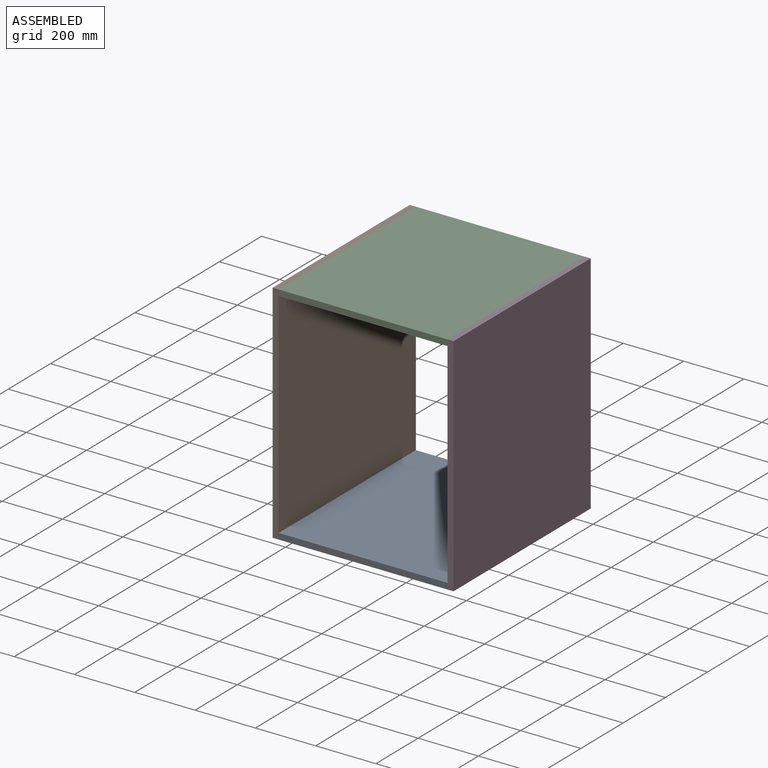
[diagram: assembled view]
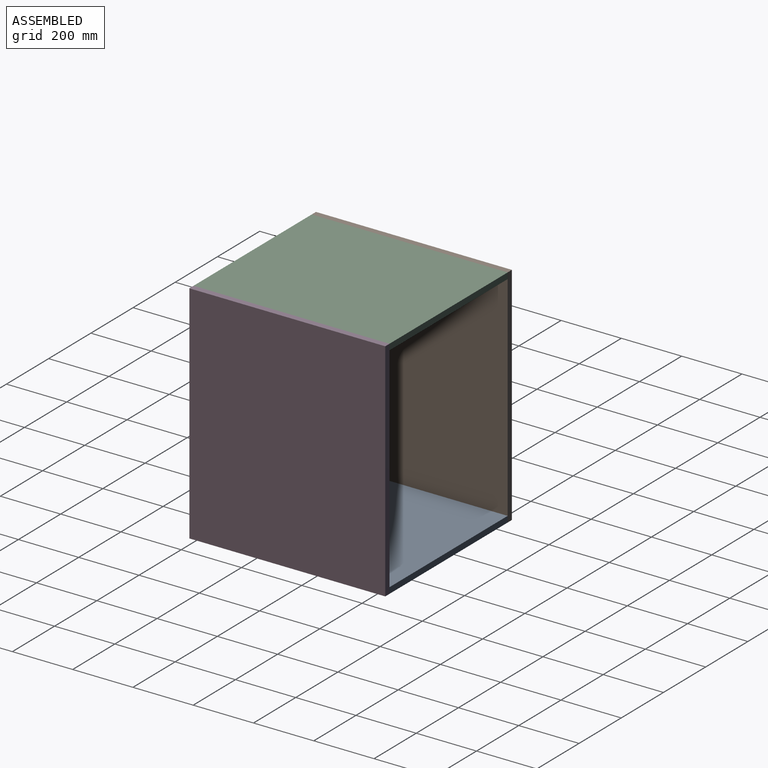
[diagram: assembled view, second angle]
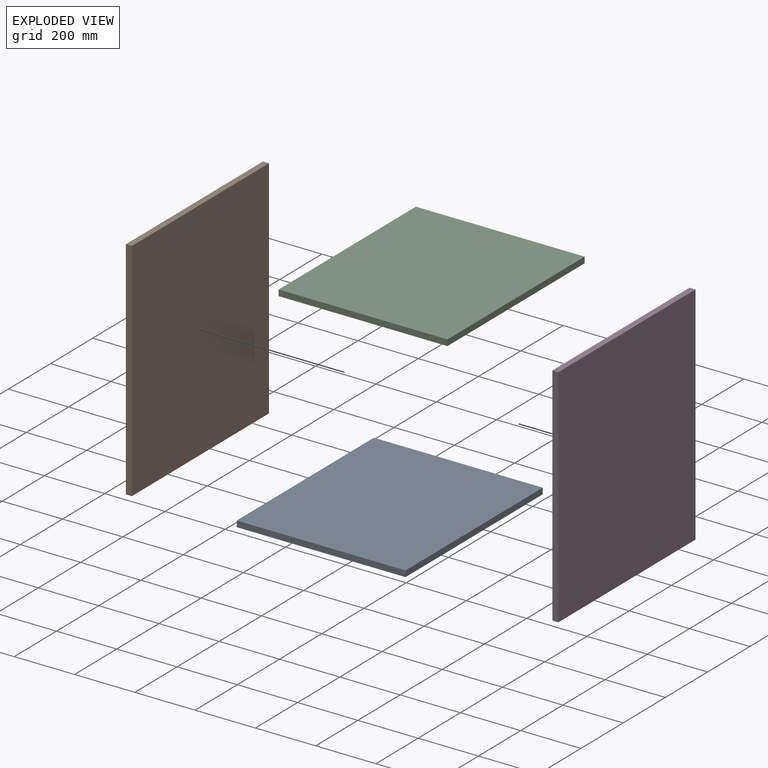
[diagram: exploded view]
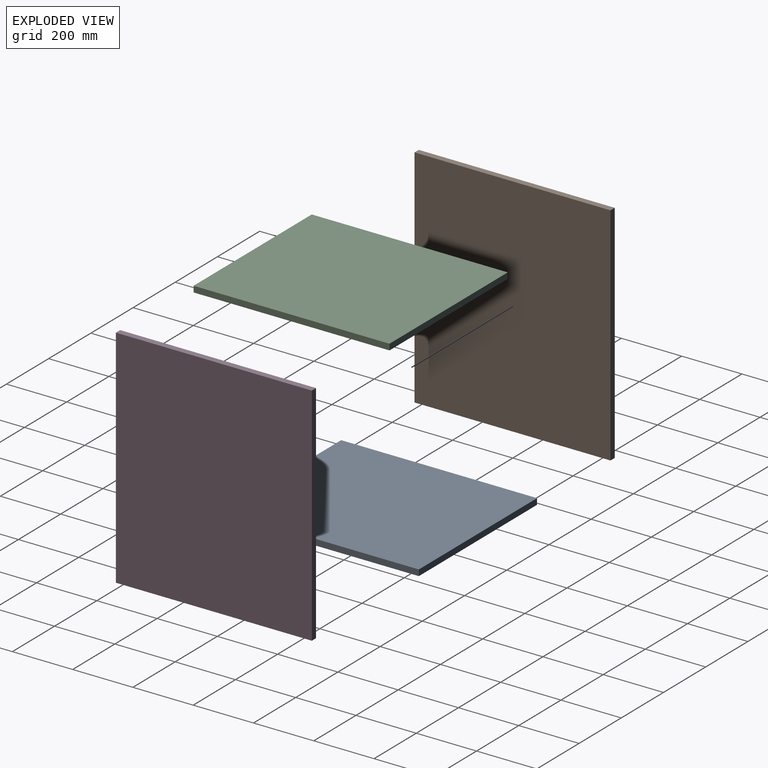
[diagram: exploded view, second angle]
ASSEMBLY  parts=4 mates=3
PART A: 6 faces, bbox 560x650x20 mm
  f0: plane 560x20mm, normal (0,1,0), area 11200mm2, adj f1,f3,f4,f5
  f1: plane 650x20mm, normal (-1,0,0), area 13000mm2, adj f0,f2,f4,f5
  f2: plane 560x20mm, normal (0,-1,0), area 11200mm2, adj f1,f3,f4,f5
  f3: plane 650x20mm, normal (1,0,0), area 13000mm2, adj f0,f2,f4,f5
  f4: plane 650x560mm, normal (0,0,1), area 364000mm2, adj f0,f1,f2,f3
  f5: plane 650x560mm, normal (0,0,-1), area 364000mm2, adj f0,f1,f2,f3
PART B: 6 faces, bbox 20x650x750 mm
  f0: plane 650x20mm, normal (0,0,1), area 13000mm2, adj f1,f3,f4,f5
  f1: plane 750x20mm, normal (0,-1,0), area 15000mm2, adj f0,f2,f4,f5
  f2: plane 650x20mm, normal (0,0,-1), area 13000mm2, adj f1,f3,f4,f5
  f3: plane 750x20mm, normal (0,1,0), area 15000mm2, adj f0,f2,f4,f5
  f4: plane 750x650mm, normal (1,0,0), area 487500mm2, adj f0,f1,f2,f3
  f5: plane 750x650mm, normal (-1,0,0), area 487500mm2, adj f0,f1,f2,f3
PART C: same geometry as A
PART D: same geometry as B
PLACE A t=(43.76,-190.54,-284.78)mm
PLACE B t=(-241.47,-101.46,56.94)mm
PLACE C t=(43.76,-190.54,445.22)mm
PLACE D t=(338.53,-101.46,56.94)mm
MATE fastened C.f1 <-> B.f4  axis (-1,0,0) through (-221.47,-76.88,465.22)mm
MATE fastened A.f1 <-> B.f4  axis (-1,0,0) through (-221.47,-76.88,-284.78)mm
MATE fastened D.f5 <-> A.f3  axis (-1,0,0) through (338.53,-76.88,-284.78)mm
